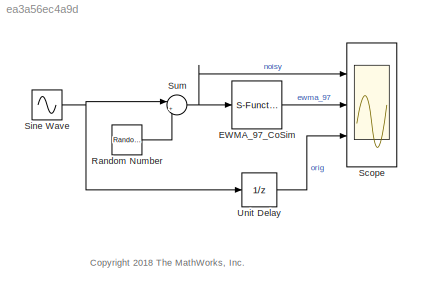
MODEL slx_ea3a56ec4a9d
KIND model
CONFIG AbsTol = auto
CONFIG EnableMultiTasking = off
CONFIG FixedStep = auto
CONFIG MaxStep = auto
CONFIG MinStep = auto
CONFIG RelTol = 1e-3
CONFIG SampleTimeConstraint = Unconstrained
CONFIG Solver = VariableStepAuto
CONFIG SolverName = VariableStepAuto
CONFIG StartTime = 0.0
CONFIG StopTime = 10
BLOCK [S-Function] EWMA_97_CoSim
  EnableBusSupport = off
  FunctionName = statcalsfcngateway
  Parameters = hostname,portnumber,beta,initvalue,stepsize
  Ports = [1, 1]
  SFcnIsStateOwnerBlock = off
  SFunctionDeploymentMode = off
BLOCK [RandomNumber] Random Number
  Mean = [0]
  SampleTime = 0.01
  Seed = [0]
  Variance = [0.5]
BLOCK [Scope] Scope
  Floating = off
  NumInputPorts = 3
  Ports = [3]
  ScopeSpecificationString = Simulink.scopes.TimeScopeBlockCfg('CurrentConfiguration', extmgr.ConfigurationSet(extmgr.Configuration('Core','General UI',true),extmgr.Configuration('Core','Source UI',true),extmgr.Configuration('Sources','WiredSimulink',true),extmgr.Configuration('Visuals','Time Domain',true,'SerializedDisplays',{struct('MinYLimReal','-6.62266','MaxYLimReal','6.62316','YLabelReal','','MinYLimMag','0.00000','MaxY...<+2007ch>
BLOCK [Sin] Sine Wave
  Amplitude = 3
  Phase = pi/2
  Ports = [0, 1]
  SampleTime = 0.01
BLOCK [Sum] Sum
  IconShape = round
  InputSameDT = off
  Inputs = |++
  OutDataTypeStr = Inherit: Inherit via internal rule
  Ports = [2, 1]
  SaturateOnIntegerOverflow = off
BLOCK [UnitDelay] Unit Delay
  InitialCondition = 3
  InputProcessing = Elements as channels (sample based)
  SampleTime = -1
ANNOTATION (root): <copyright redacted>
LINE EWMA_97_CoSim:1 -> Scope:2
LINE Random Number:1 -> Sum:2
NET Sine Wave:1 -> Sum:1, Unit Delay:1
NET Sum:1 -> EWMA_97_CoSim:1, Scope:1
LINE Unit Delay:1 -> Scope:3
note: NET lines group one-source signal fan-out (src -> all destinations, sorted); 1:1 wires keep LINE
